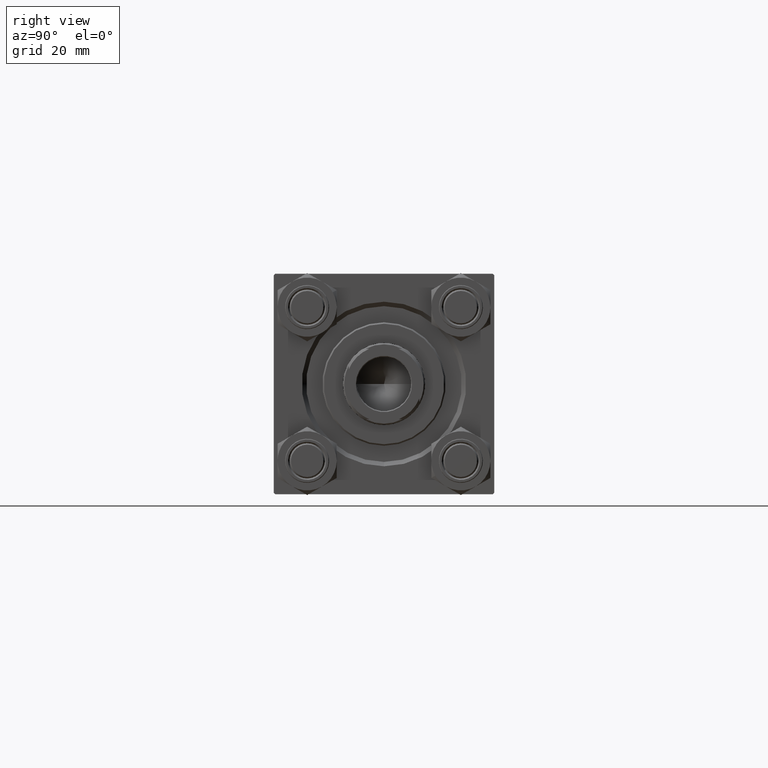
[diagram: clean part render]
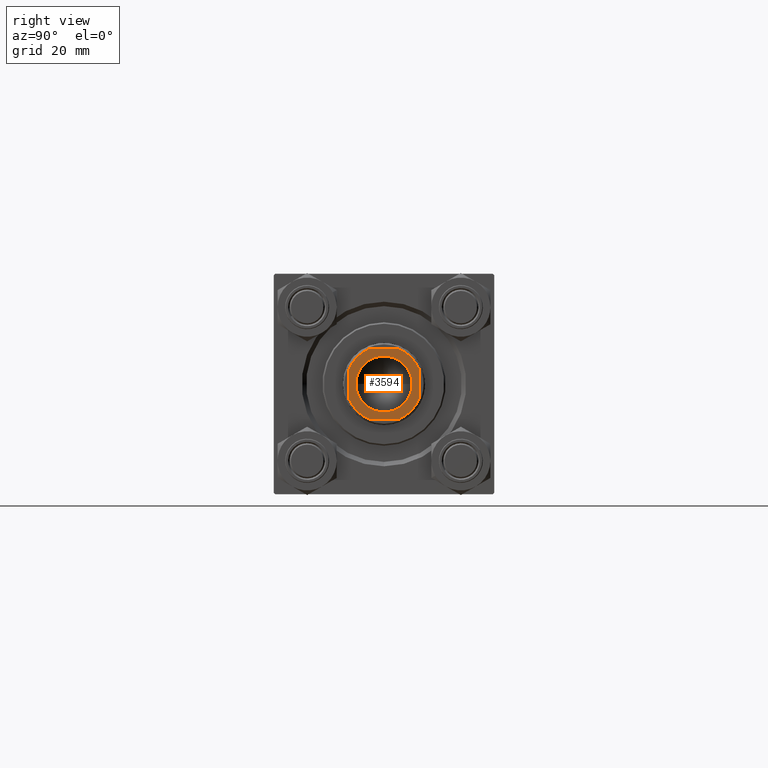
[diagram: same view with one face highlighted and labeled with its STEP entity id]
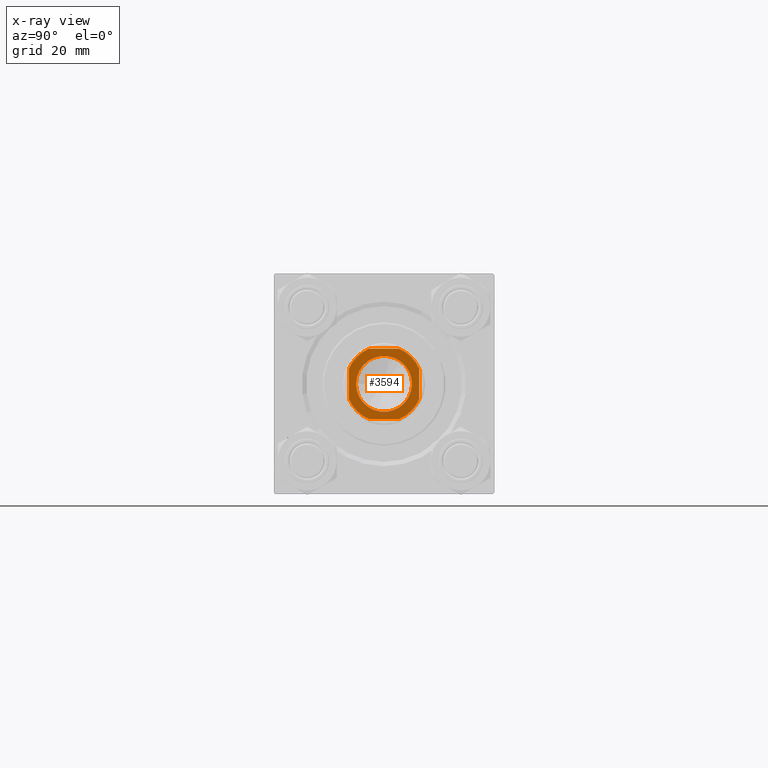
[diagram: x-ray of the same camera — body ghosted, the highlighted face saturated]
A machine part, right view. The second image highlights one B-rep face of the part: STEP entity #3594.
The next image is the same camera in x-ray: the body ghosted, the highlighted face saturated — about 0% of this face is hidden behind the body in this view.
In plain terms, the highlighted planar face has unit normal (1, 0, -0).
Its self-contained STEP definition (entity closure, byte-faithful):
#862 = DIRECTION ( 'NONE',  ( 1.000000000000000000, 0.000000000000000000, 0.000000000000000000 ) ) ;
#1485 = VECTOR ( 'NONE', #862, 1000.000000000000000 ) ;
#2459 = ORIENTED_EDGE ( 'NONE', *, *, #39552, .T. ) ;
#2805 = DIRECTION ( 'NONE',  ( 1.000000000000000000, 0.000000000000000000, 0.000000000000000000 ) ) ;
#2886 = CARTESIAN_POINT ( 'NONE',  ( 11.99999999999999822, 4.999999999999980460, 142.0000000000000284 ) ) ;
#3594 = ADVANCED_FACE ( 'NONE', ( #43864, #20719 ), #29241, .T. ) ;
#3763 = DIRECTION ( 'NONE',  ( 0.000000000000000000, -0.000000000000000000, -1.000000000000000000 ) ) ;
#3824 = EDGE_CURVE ( 'NONE', #48505, #25715, #5488, .T. ) ;
#3910 = DIRECTION ( 'NONE',  ( 7.228014483236695816E-17, -1.000000000000000000, 0.000000000000000000 ) ) ;
#4165 = CARTESIAN_POINT ( 'NONE',  ( -12.00000000000000000, 11.99999999999999645, 142.0000000000000284 ) ) ;
#4758 = CARTESIAN_POINT ( 'NONE',  ( -12.00000000000000000, 4.999999999999936051, 142.0000000000000284 ) ) ;
#5185 = CARTESIAN_POINT ( 'NONE',  ( 11.99999999999999645, 11.99999999999999645, 142.0000000000000284 ) ) ;
#5264 = EDGE_CURVE ( 'NONE', #39015, #11581, #47974, .T. ) ;
#5488 = CIRCLE ( 'NONE', #14292, 12.99999999999999289 ) ;
#5752 = EDGE_CURVE ( 'NONE', #14619, #39015, #28835, .T. ) ;
#7732 = VECTOR ( 'NONE', #20499, 1000.000000000000000 ) ;
#8159 = LINE ( 'NONE', #15446, #1485 ) ;
#8958 = EDGE_LOOP ( 'NONE', ( #47178, #27314, #32155, #43476, #29814, #36638, #2459, #48524 ) ) ;
#9067 = DIRECTION ( 'NONE',  ( 1.000000000000000000, 0.000000000000000000, 0.000000000000000000 ) ) ;
#9140 = AXIS2_PLACEMENT_3D ( 'NONE', #14579, #3763, #41989 ) ;
#10331 = EDGE_CURVE ( 'NONE', #15124, #19762, #18752, .T. ) ;
#11144 = VECTOR ( 'NONE', #13506, 1000.000000000000000 ) ;
#11149 = DIRECTION ( 'NONE',  ( 1.000000000000000000, 0.000000000000000000, 0.000000000000000000 ) ) ;
#11581 = VERTEX_POINT ( 'NONE', #12458 ) ;
#11766 = EDGE_CURVE ( 'NONE', #11581, #15124, #41075, .T. ) ;
#12458 = CARTESIAN_POINT ( 'NONE',  ( -4.999999999999944933, 11.99999999999999645, 142.0000000000000284 ) ) ;
#13017 = EDGE_CURVE ( 'NONE', #19762, #22182, #33063, .T. ) ;
#13506 = DIRECTION ( 'NONE',  ( -1.000000000000000000, -0.000000000000000000, -0.000000000000000000 ) ) ;
#14269 = VERTEX_POINT ( 'NONE', #34915 ) ;
#14292 = AXIS2_PLACEMENT_3D ( 'NONE', #20902, #43802, #24675 ) ;
#14526 = CARTESIAN_POINT ( 'NONE',  ( -4.999999999999971578, -12.00000000000000355, 142.0000000000000284 ) ) ;
#14579 = CARTESIAN_POINT ( 'NONE',  ( 0.000000000000000000, 0.000000000000000000, 142.0000000000000284 ) ) ;
#14619 = VERTEX_POINT ( 'NONE', #2886 ) ;
#15124 = VERTEX_POINT ( 'NONE', #4758 ) ;
#15443 = CARTESIAN_POINT ( 'NONE',  ( 0.000000000000000000, 0.000000000000000000, 142.0000000000000284 ) ) ;
#15446 = CARTESIAN_POINT ( 'NONE',  ( -11.99999999999999822, -12.00000000000000355, 142.0000000000000284 ) ) ;
#16189 = DIRECTION ( 'NONE',  ( 1.000000000000000000, 0.000000000000000000, 0.000000000000000000 ) ) ;
#16923 = CARTESIAN_POINT ( 'NONE',  ( 4.999999999999984013, 11.99999999999999645, 142.0000000000000284 ) ) ;
#18191 = CIRCLE ( 'NONE', #48719, 9.550000000000002487 ) ;
#18439 = CARTESIAN_POINT ( 'NONE',  ( 0.000000000000000000, 0.000000000000000000, 142.0000000000000284 ) ) ;
#18752 = LINE ( 'NONE', #4165, #45061 ) ;
#19324 = LINE ( 'NONE', #5185, #7732 ) ;
#19401 = AXIS2_PLACEMENT_3D ( 'NONE', #18439, #41079, #11149 ) ;
#19461 = DIRECTION ( 'NONE',  ( -0.000000000000000000, 0.000000000000000000, 1.000000000000000000 ) ) ;
#19762 = VERTEX_POINT ( 'NONE', #37917 ) ;
#20499 = DIRECTION ( 'NONE',  ( -2.891205793294678326E-16, 1.000000000000000000, -0.000000000000000000 ) ) ;
#20719 = FACE_OUTER_BOUND ( 'NONE', #8958, .T. ) ;
#20739 = EDGE_CURVE ( 'NONE', #14269, #23578, #40455, .T. ) ;
#20902 = CARTESIAN_POINT ( 'NONE',  ( 0.000000000000000000, 0.000000000000000000, 142.0000000000000284 ) ) ;
#21900 = CARTESIAN_POINT ( 'NONE',  ( 0.000000000000000000, 0.000000000000000000, 142.0000000000000284 ) ) ;
#22182 = VERTEX_POINT ( 'NONE', #14526 ) ;
#23578 = VERTEX_POINT ( 'NONE', #39802 ) ;
#24498 = DIRECTION ( 'NONE',  ( 1.000000000000000000, 0.000000000000000000, 0.000000000000000000 ) ) ;
#24628 = CARTESIAN_POINT ( 'NONE',  ( 0.000000000000000000, 0.000000000000000000, 142.0000000000000284 ) ) ;
#24675 = DIRECTION ( 'NONE',  ( 1.000000000000000000, 0.000000000000000000, 0.000000000000000000 ) ) ;
#24825 = CARTESIAN_POINT ( 'NONE',  ( -12.00000000000000000, 11.99999999999999645, 142.0000000000000284 ) ) ;
#25715 = VERTEX_POINT ( 'NONE', #49374 ) ;
#25723 = ORIENTED_EDGE ( 'NONE', *, *, #28118, .T. ) ;
#27314 = ORIENTED_EDGE ( 'NONE', *, *, #5752, .T. ) ;
#27547 = EDGE_CURVE ( 'NONE', #25715, #14619, #19324, .T. ) ;
#28118 = EDGE_CURVE ( 'NONE', #23578, #14269, #18191, .T. ) ;
#28420 = DIRECTION ( 'NONE',  ( -0.000000000000000000, 0.000000000000000000, 1.000000000000000000 ) ) ;
#28835 = CIRCLE ( 'NONE', #42530, 12.99999999999999112 ) ;
#29241 = PLANE ( 'NONE',  #40001 ) ;
#29814 = ORIENTED_EDGE ( 'NONE', *, *, #10331, .T. ) ;
#32155 = ORIENTED_EDGE ( 'NONE', *, *, #5264, .T. ) ;
#32406 = CARTESIAN_POINT ( 'NONE',  ( 4.999999999999971578, -12.00000000000000355, 142.0000000000000284 ) ) ;
#33063 = CIRCLE ( 'NONE', #39512, 12.99999999999999289 ) ;
#34915 = CARTESIAN_POINT ( 'NONE',  ( 9.550000000000002487, 0.000000000000000000, 142.0000000000000284 ) ) ;
#36054 = DIRECTION ( 'NONE',  ( -0.000000000000000000, 0.000000000000000000, 1.000000000000000000 ) ) ;
#36638 = ORIENTED_EDGE ( 'NONE', *, *, #13017, .T. ) ;
#37039 = CARTESIAN_POINT ( 'NONE',  ( 0.000000000000000000, 0.000000000000000000, 142.0000000000000284 ) ) ;
#37245 = DIRECTION ( 'NONE',  ( 0.000000000000000000, -0.000000000000000000, -1.000000000000000000 ) ) ;
#37917 = CARTESIAN_POINT ( 'NONE',  ( -12.00000000000000000, -4.999999999999980460, 142.0000000000000284 ) ) ;
#39015 = VERTEX_POINT ( 'NONE', #16923 ) ;
#39512 = AXIS2_PLACEMENT_3D ( 'NONE', #24628, #28420, #9067 ) ;
#39552 = EDGE_CURVE ( 'NONE', #22182, #48505, #8159, .T. ) ;
#39802 = CARTESIAN_POINT ( 'NONE',  ( -9.550000000000002487, 1.169537693185722558E-15, 142.0000000000000284 ) ) ;
#40001 = AXIS2_PLACEMENT_3D ( 'NONE', #37039, #36054, #24498 ) ;
#40455 = CIRCLE ( 'NONE', #9140, 9.550000000000002487 ) ;
#41075 = CIRCLE ( 'NONE', #19401, 12.99999999999997513 ) ;
#41079 = DIRECTION ( 'NONE',  ( -0.000000000000000000, 0.000000000000000000, 1.000000000000000000 ) ) ;
#41989 = DIRECTION ( 'NONE',  ( 1.000000000000000000, 0.000000000000000000, 0.000000000000000000 ) ) ;
#42530 = AXIS2_PLACEMENT_3D ( 'NONE', #15443, #19461, #16189 ) ;
#42983 = EDGE_LOOP ( 'NONE', ( #46939, #25723 ) ) ;
#43476 = ORIENTED_EDGE ( 'NONE', *, *, #11766, .T. ) ;
#43802 = DIRECTION ( 'NONE',  ( -0.000000000000000000, 0.000000000000000000, 1.000000000000000000 ) ) ;
#43864 = FACE_BOUND ( 'NONE', #42983, .T. ) ;
#45061 = VECTOR ( 'NONE', #3910, 1000.000000000000000 ) ;
#46939 = ORIENTED_EDGE ( 'NONE', *, *, #20739, .T. ) ;
#47178 = ORIENTED_EDGE ( 'NONE', *, *, #27547, .T. ) ;
#47974 = LINE ( 'NONE', #24825, #11144 ) ;
#48505 = VERTEX_POINT ( 'NONE', #32406 ) ;
#48524 = ORIENTED_EDGE ( 'NONE', *, *, #3824, .T. ) ;
#48719 = AXIS2_PLACEMENT_3D ( 'NONE', #21900, #37245, #2805 ) ;
#49374 = CARTESIAN_POINT ( 'NONE',  ( 12.00000000000000178, -4.999999999999976907, 142.0000000000000284 ) ) ;